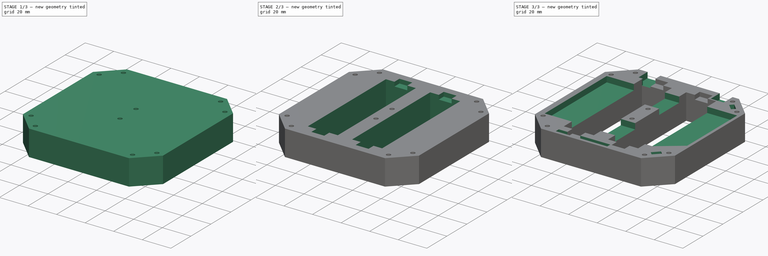
[diagram: build sequence overview — one tinted view per stage of 3, left to right]
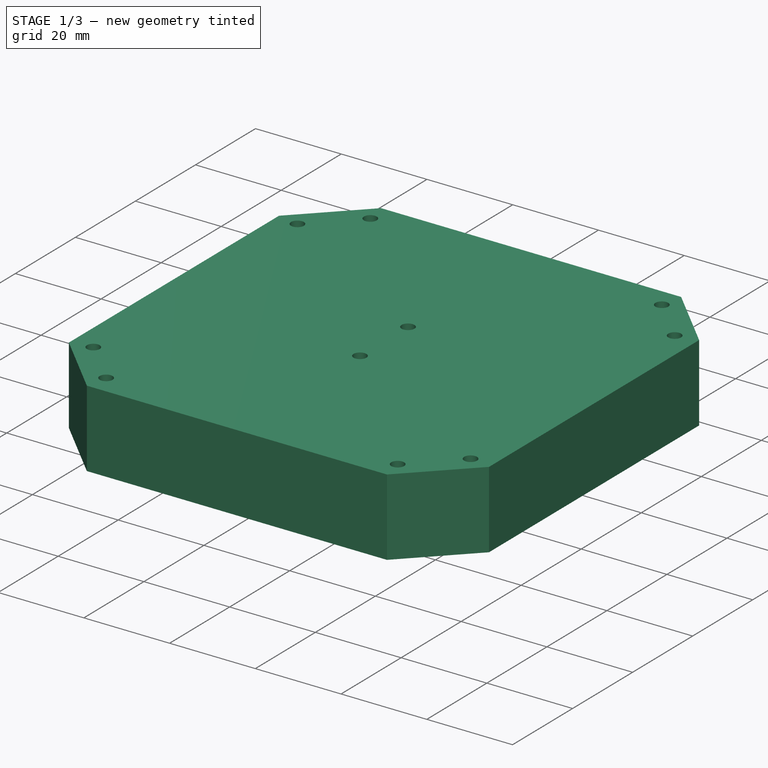
[diagram: stage 1 of 3 — iso view after this stage's code; geometry added in this stage tinted green]
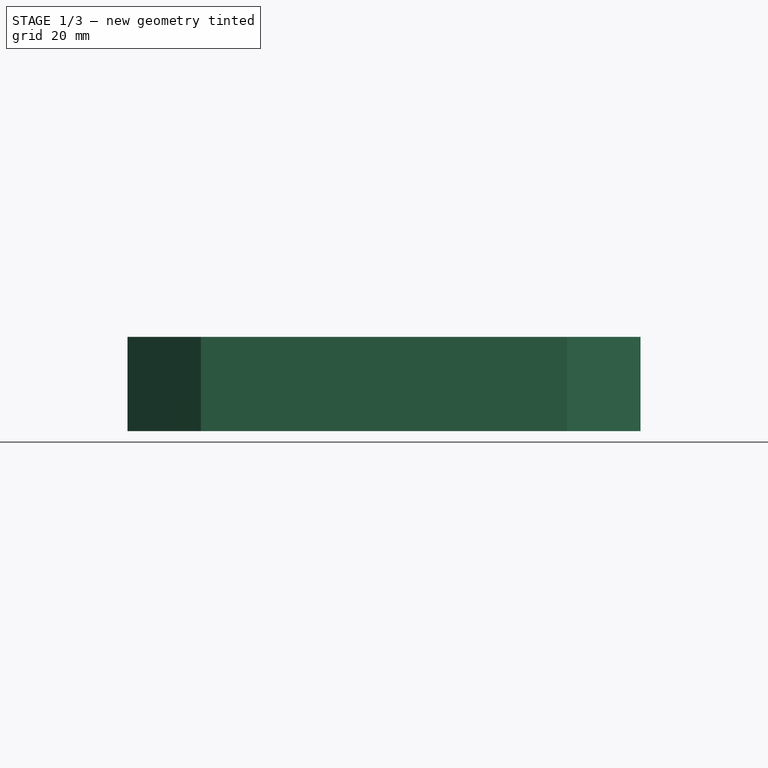
[diagram: stage 1 of 3 — front view after this stage's code; geometry added in this stage tinted green]
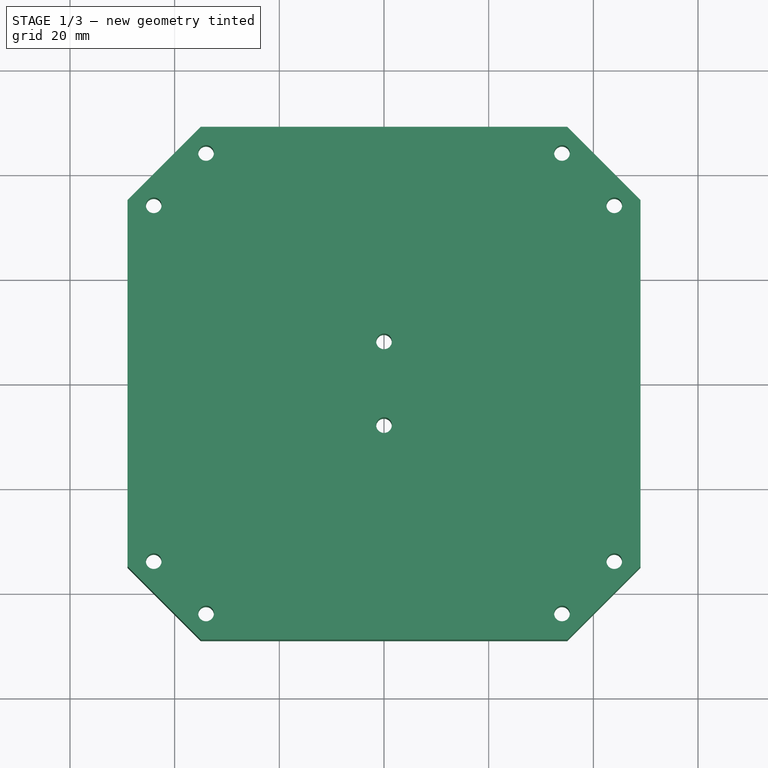
[diagram: stage 1 of 3 — top view after this stage's code; geometry added in this stage tinted green]
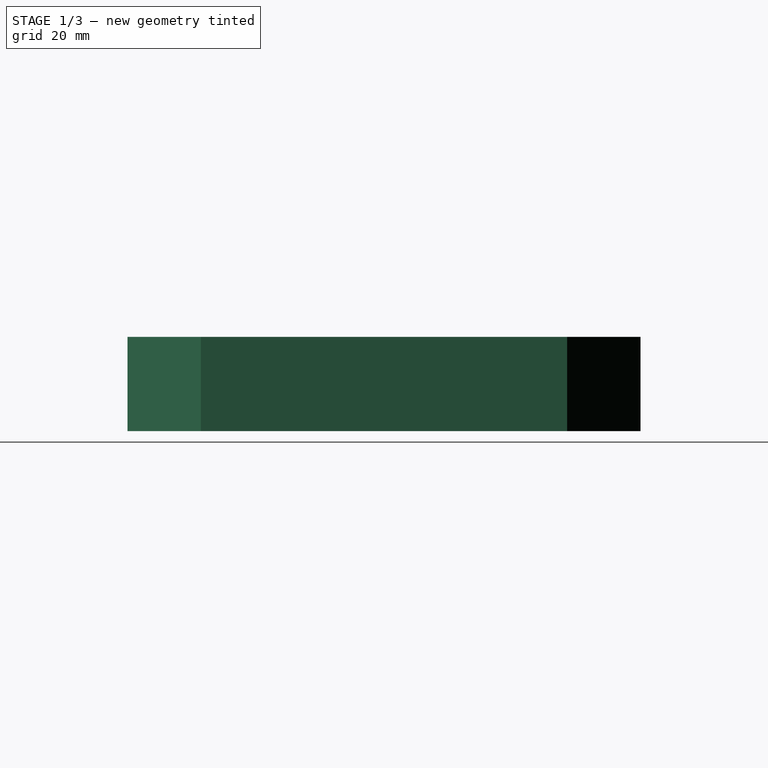
[diagram: stage 1 of 3 — right view after this stage's code; geometry added in this stage tinted green]
FCSTD DOCUMENT  (FreeCAD 0.19R24291 (Git))
Label: support
License: All rights reserved
LicenseURL: http://en.wikipedia.org/wiki/All_rights_reserved
objects: Sketcher::SketchObject×6, PartDesign::Pocket×5, PartDesign::Pad×1, PartDesign::Plane×1, PartDesign::Body×1, App::Part×1
note: 20 computed .brp shape members not serialized (recipe doc carries the construction recipe); baked Part::Feature solids carry a one-line shape summary decoded from their .brp

FEATURE [Sketcher::SketchObject] Sketch  label="outline"
  FullyConstrained = true
  MapMode = 5
  Support = -> [XY_Plane001]
  sketch-geometry (8):
    g0: LineSegment StartX=-49 StartY=35 StartZ=0 EndX=-35 EndY=49 EndZ=0
    g1: LineSegment StartX=-35 StartY=49 StartZ=0 EndX=35 EndY=49 EndZ=0
    g2: LineSegment StartX=35 StartY=49 StartZ=0 EndX=49 EndY=35 EndZ=0
    g3: LineSegment StartX=49 StartY=35 StartZ=0 EndX=49 EndY=-35 EndZ=0
    g4: LineSegment StartX=49 StartY=-35 StartZ=0 EndX=35 EndY=-49 EndZ=0
    g5: LineSegment StartX=35 StartY=-49 StartZ=0 EndX=-35 EndY=-49 EndZ=0
    g6: LineSegment StartX=-35 StartY=-49 StartZ=0 EndX=-49 EndY=-35 EndZ=0
    g7: LineSegment StartX=-49 StartY=-35 StartZ=0 EndX=-49 EndY=35 EndZ=0
  constraints (24):
    c: Coincident(g1,g0)
    c: Horizontal(g1)
    c: Coincident(g2,g1)
    c: Coincident(g3,g2)
    c: Vertical(g3)
    c: Coincident(g4,g3)
    c: Coincident(g5,g4)
    c: Horizontal(g5)
    c: Coincident(g6,g5)
    c: Coincident(g7,g6)
    c: Coincident(g7,g0)
    c: Vertical(g7)
    c: Vertical(g0,g5)
    c: Vertical(g1,g4)
    c: Horizontal(g0,g2)
    c: Horizontal(g6,g3)
    c: DistanceX(g1,g1) = 70
    c: Equal(g1,g7)
    c: DistanceX(g0,g2) = 98
    c: Angle(g0) = 0.785398
    c: Angle(g2) = -0.785398
    c: Angle(g6) = 2.35619
    c: DistanceY(g-1,g1) = 49
    c: DistanceX(g0,g-1) = 49
FEATURE [PartDesign::Pad] Pad
  Direction = (1,1,1)
  Length = 18
  Length2 = 100
  Profile = -> Sketch
  Type = 0
FEATURE [PartDesign::Plane] DatumPlane
  AttachmentOffset = pos=(0,0,18) rot=(0,0,1;0rad)
  Length = 117.6
  MapMode = 2
  Placement = pos=(0,0,18) rot=(0,0,1;0rad)
  ResizeMode = 0
  Support = -> [XY_Plane001]
  Width = 117.6
  expr: .AttachmentOffset.Base.z = Pad.Length
FEATURE [Sketcher::SketchObject] Sketch001
  FullyConstrained = true
  MapMode = 5
  Placement = pos=(0,0,18) rot=(0,0,1;0rad)
  Support = -> [DatumPlane]
  sketch-geometry (10):
    g0: Circle CenterX=-34 CenterY=44 CenterZ=0 NormalX=0 NormalY=0 NormalZ=1 AngleXU=0 Radius=1.5
    g1: Circle CenterX=34 CenterY=44 CenterZ=0 NormalX=0 NormalY=0 NormalZ=1 AngleXU=0 Radius=1.5
    g2: Circle CenterX=44 CenterY=34 CenterZ=0 NormalX=0 NormalY=0 NormalZ=1 AngleXU=0 Radius=1.5
    g3: Circle CenterX=-44 CenterY=34 CenterZ=0 NormalX=0 NormalY=0 NormalZ=1 AngleXU=0 Radius=1.5
    g4: Circle CenterX=-44 CenterY=-34 CenterZ=0 NormalX=0 NormalY=0 NormalZ=1 AngleXU=0 Radius=1.5
    g5: Circle CenterX=-34 CenterY=-44 CenterZ=0 NormalX=0 NormalY=0 NormalZ=1 AngleXU=0 Radius=1.5
    g6: Circle CenterX=34 CenterY=-44 CenterZ=0 NormalX=0 NormalY=0 NormalZ=1 AngleXU=0 Radius=1.5
    g7: Circle CenterX=44 CenterY=-34 CenterZ=0 NormalX=0 NormalY=0 NormalZ=1 AngleXU=0 Radius=1.5
    g8: Circle CenterX=0 CenterY=8 CenterZ=0 NormalX=0 NormalY=0 NormalZ=1 AngleXU=0 Radius=1.5
    g9: Circle CenterX=0 CenterY=-8 CenterZ=0 NormalX=0 NormalY=0 NormalZ=1 AngleXU=0 Radius=1.5
  constraints (30):
    c: Equal(g7,g6)
    c: Equal(g6,g5)
    c: Equal(g5,g4)
    c: Equal(g4,g3)
    c: Equal(g3,g0)
    c: Equal(g0,g1)
    c: Equal(g1,g2)
    c: Radius(g0) = 1.5
    c: Horizontal(g0,g1)
    c: Horizontal(g5,g6)
    c: Vertical(g4,g3)
    c: Vertical(g7,g2)
    c: DistanceX(g0,g-1) = 34
    c: DistanceY(g-1,g0) = 44
    c: Vertical(g5,g0)
    c: Vertical(g6,g1)
    c: Horizontal(g7,g4)
    c: Horizontal(g3,g2)
    c: DistanceX(g-1,g1) = 34
    c: DistanceY(g5,g-1) = 44
    c: DistanceY(g7,g-1) = 34
    c: DistanceX(g-1,g7) = 44
    c: DistanceY(g-1,g2) = 34
    c: DistanceX(g4,g-1) = 44
    c: PointOnObject(g8,g-2)
    c: PointOnObject(g9,g-2)
    c: Equal(g8,g9)
    c: Equal(g9,g2)
    c: DistanceY(g-1,g8) = 8
    c: DistanceY(g9,g-1) = 8
FEATURE [PartDesign::Pocket] Pocket  label="Mounting_holes"
  BaseFeature = -> Pad
  Length = 5
  Length2 = 100
  Profile = -> Sketch001
  Type = 1
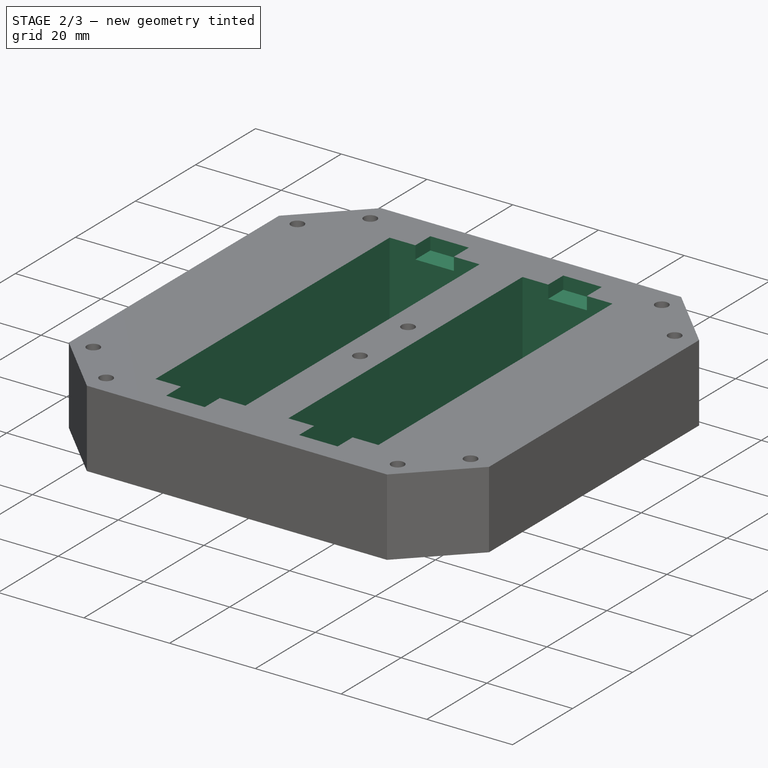
[diagram: stage 2 of 3 — iso view after this stage's code; geometry added in this stage tinted green]
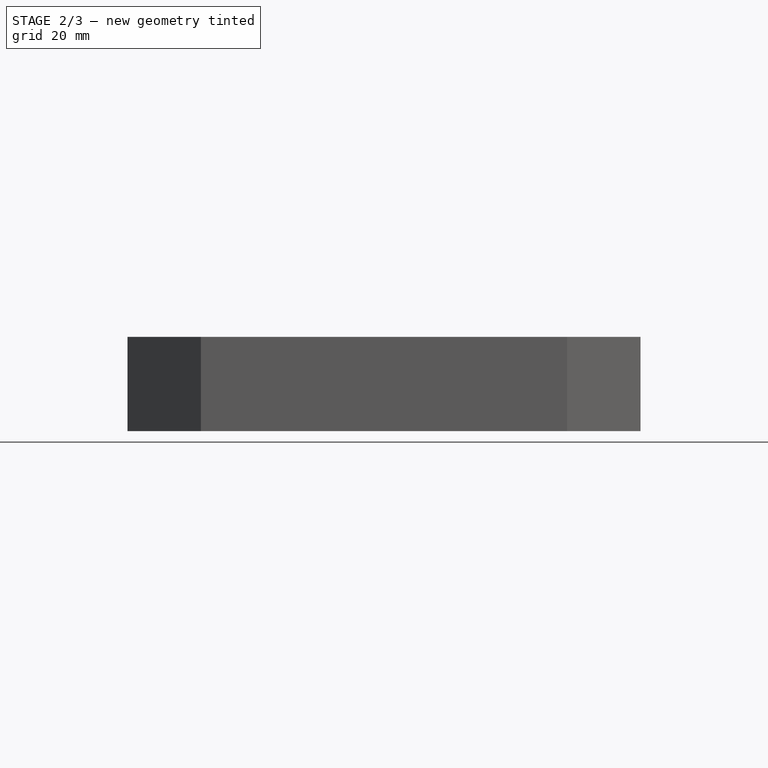
[diagram: stage 2 of 3 — front view after this stage's code; geometry added in this stage tinted green]
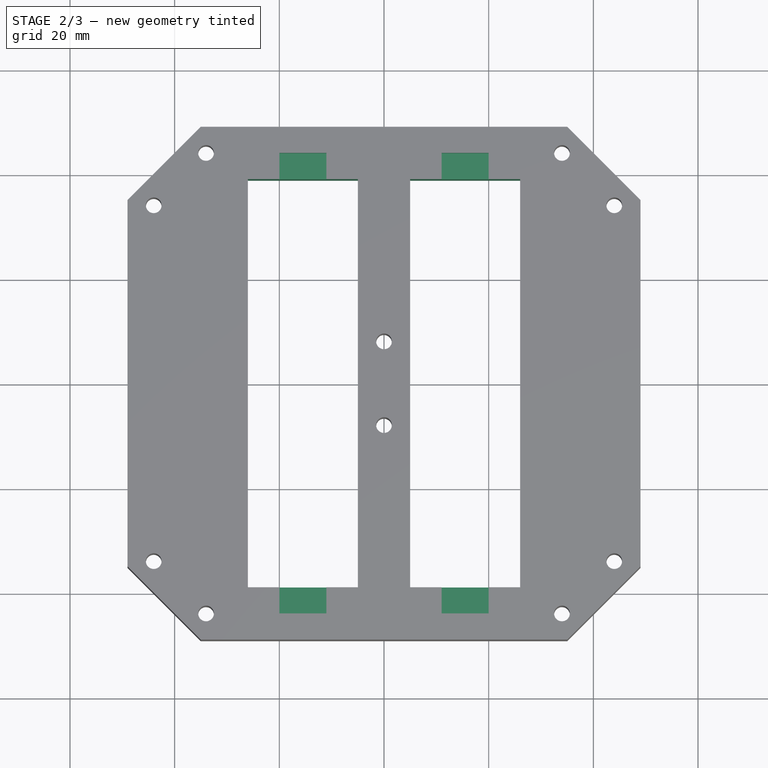
[diagram: stage 2 of 3 — top view after this stage's code; geometry added in this stage tinted green]
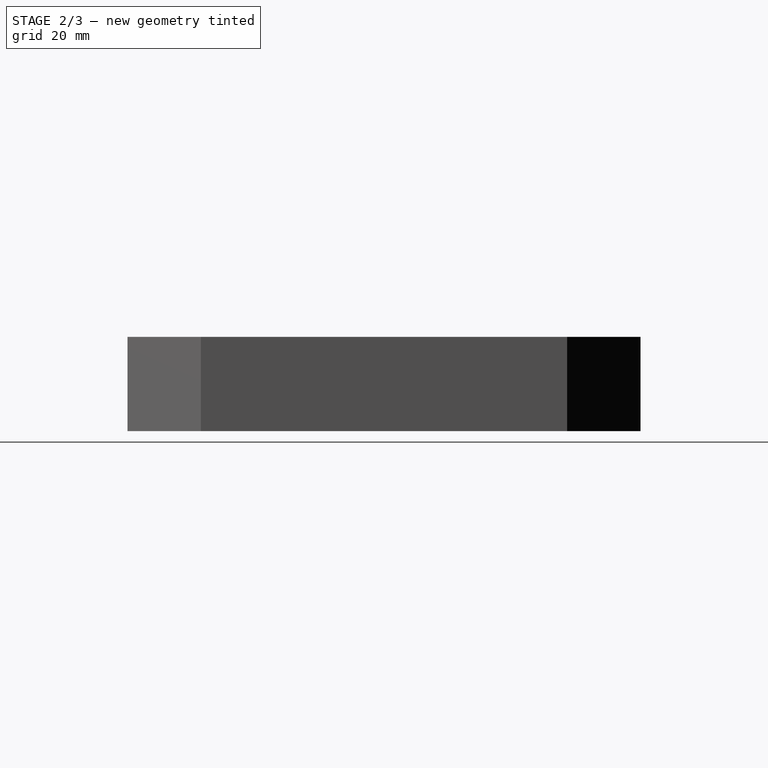
[diagram: stage 2 of 3 — right view after this stage's code; geometry added in this stage tinted green]
FEATURE [Sketcher::SketchObject] Sketch002
  FullyConstrained = true
  MapMode = 5
  Placement = pos=(0,0,18) rot=(0,0,1;0rad)
  Support = -> [DatumPlane]
  sketch-geometry (8):
    g0: LineSegment StartX=-26 StartY=39 StartZ=0 EndX=-5 EndY=39 EndZ=0
    g1: LineSegment StartX=-5 StartY=39 StartZ=0 EndX=-5 EndY=-39 EndZ=0
    g2: LineSegment StartX=-5 StartY=-39 StartZ=0 EndX=-26 EndY=-39 EndZ=0
    g3: LineSegment StartX=-26 StartY=-39 StartZ=0 EndX=-26 EndY=39 EndZ=0
    g4: LineSegment StartX=5 StartY=39 StartZ=0 EndX=26 EndY=39 EndZ=0
    g5: LineSegment StartX=26 StartY=39 StartZ=0 EndX=26 EndY=-39 EndZ=0
    g6: LineSegment StartX=26 StartY=-39 StartZ=0 EndX=5 EndY=-39 EndZ=0
    g7: LineSegment StartX=5 StartY=-39 StartZ=0 EndX=5 EndY=39 EndZ=0
  constraints (24):
    c: Coincident(g0,g1)
    c: Coincident(g1,g2)
    c: Coincident(g2,g3)
    c: Coincident(g3,g0)
    c: Horizontal(g0)
    c: Horizontal(g2)
    c: Vertical(g1)
    c: Vertical(g3)
    c: Coincident(g4,g5)
    c: Coincident(g5,g6)
    c: Coincident(g6,g7)
    c: Coincident(g7,g4)
    c: Horizontal(g4)
    c: Horizontal(g6)
    c: Vertical(g5)
    c: Vertical(g7)
    c: Horizontal(g0,g4)
    c: Horizontal(g1,g6)
    c: Equal(g2,g6)
    c: DistanceY(g1,g-1) = 39
    c: DistanceX(g1,g-1) = 5
    c: DistanceX(g-1,g6) = 5
    c: DistanceX(g0,g0) = 21
    c: DistanceY(g-1,g0) = 39
FEATURE [PartDesign::Pocket] Pocket001  label="Batt_holes"
  BaseFeature = -> Pocket
  Length = 5
  Length2 = 100
  Profile = -> Sketch002
  Type = 1
FEATURE [Sketcher::SketchObject] Sketch003
  FullyConstrained = true
  MapMode = 5
  Placement = pos=(0,0,18) rot=(0,0,1;0rad)
  Support = -> [DatumPlane]
  sketch-geometry (8):
    g0: LineSegment StartX=-20 StartY=44 StartZ=0 EndX=-11 EndY=44 EndZ=0
    g1: LineSegment StartX=-11 StartY=44 StartZ=0 EndX=-11 EndY=-44 EndZ=0
    g2: LineSegment StartX=-11 StartY=-44 StartZ=0 EndX=-20 EndY=-44 EndZ=0
    g3: LineSegment StartX=-20 StartY=-44 StartZ=0 EndX=-20 EndY=44 EndZ=0
    g4: LineSegment StartX=11 StartY=44 StartZ=0 EndX=20 EndY=44 EndZ=0
    g5: LineSegment StartX=20 StartY=44 StartZ=0 EndX=20 EndY=-44 EndZ=0
    g6: LineSegment StartX=20 StartY=-44 StartZ=0 EndX=11 EndY=-44 EndZ=0
    g7: LineSegment StartX=11 StartY=-44 StartZ=0 EndX=11 EndY=44 EndZ=0
  constraints (24):
    c: Coincident(g0,g1)
    c: Coincident(g1,g2)
    c: Coincident(g2,g3)
    c: Coincident(g3,g0)
    c: Horizontal(g0)
    c: Horizontal(g2)
    c: Vertical(g1)
    c: Vertical(g3)
    c: Coincident(g4,g5)
    c: Coincident(g5,g6)
    c: Coincident(g6,g7)
    c: Coincident(g7,g4)
    c: Horizontal(g4)
    c: Horizontal(g6)
    c: Vertical(g5)
    c: Vertical(g7)
    c: Horizontal(g1,g6)
    c: Horizontal(g0,g4)
    c: DistanceX(g0,g0) = 9
    c: Equal(g0,g4)
    c: DistanceY(g-1,g0) = 44
    c: DistanceY(g2,g-1) = 44
    c: DistanceX(g0,g-1) = 11
    c: DistanceX(g-1,g4) = 11
FEATURE [PartDesign::Pocket] Pocket002  label="Batt_tabs"
  BaseFeature = -> Pocket001
  Length = 3
  Length2 = 100
  Profile = -> Sketch003
  Type = 0
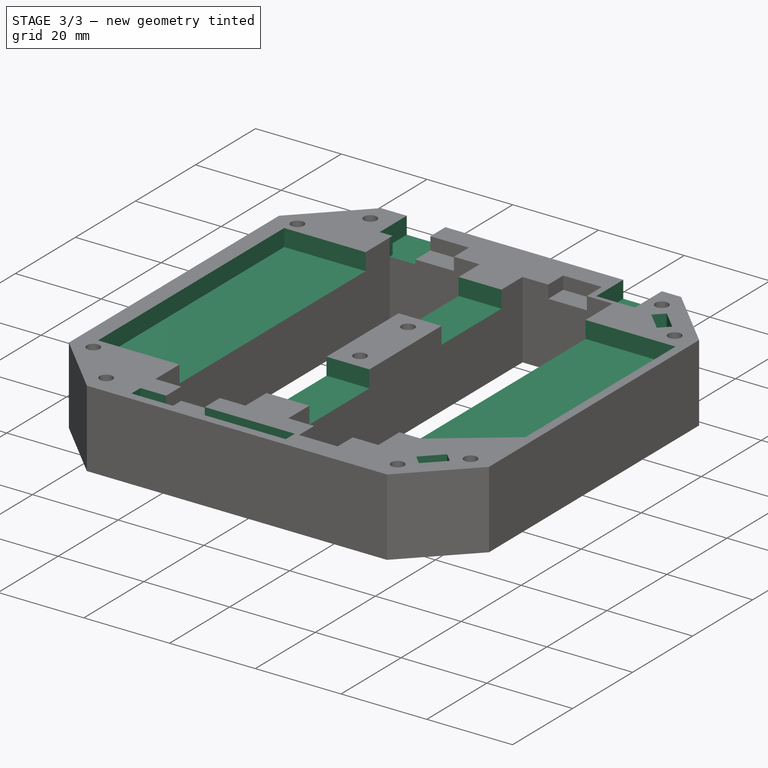
[diagram: stage 3 of 3 — iso view after this stage's code; geometry added in this stage tinted green]
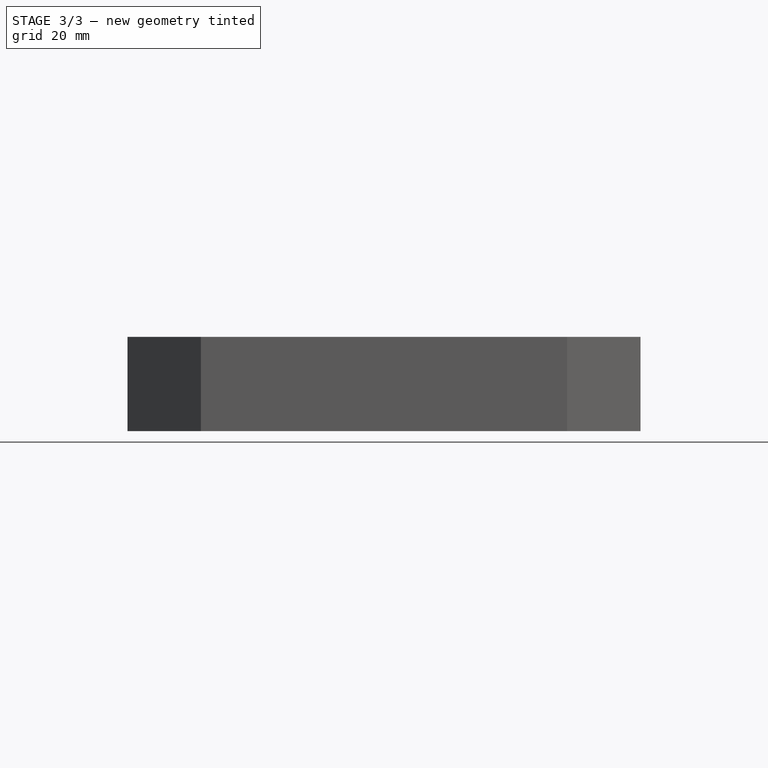
[diagram: stage 3 of 3 — front view after this stage's code; geometry added in this stage tinted green]
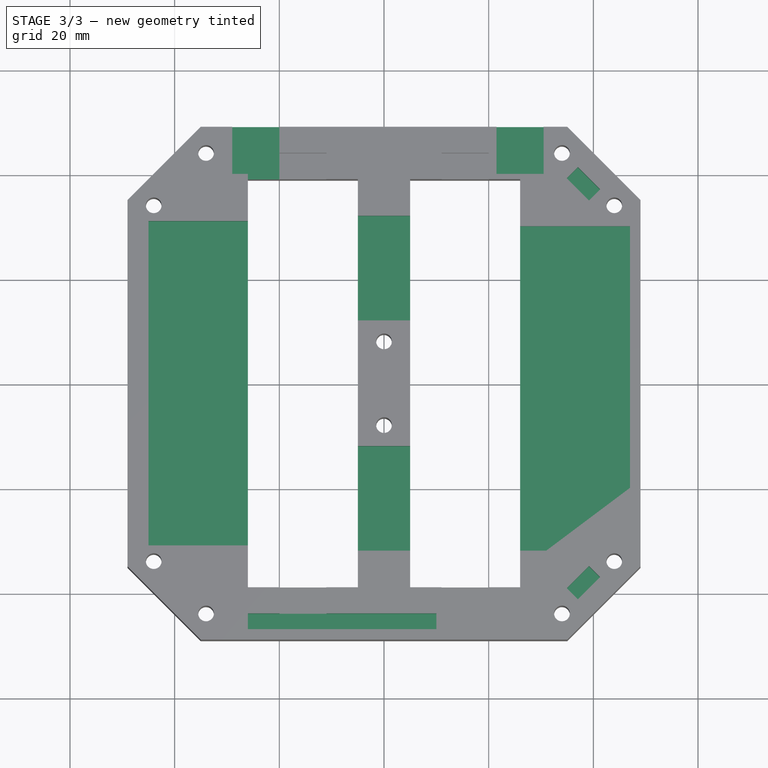
[diagram: stage 3 of 3 — top view after this stage's code; geometry added in this stage tinted green]
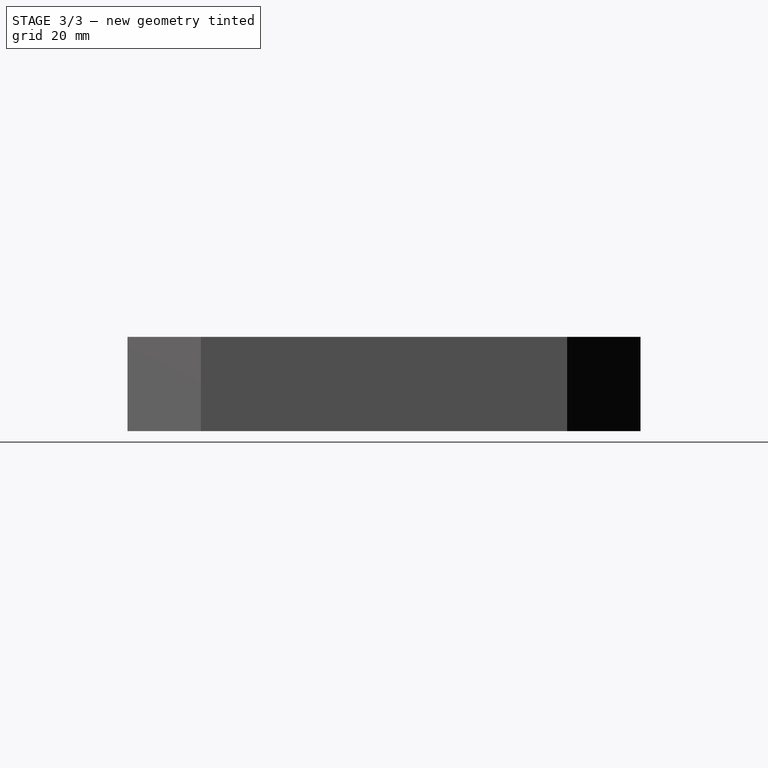
[diagram: stage 3 of 3 — right view after this stage's code; geometry added in this stage tinted green]
FEATURE [Sketcher::SketchObject] Sketch004
  ExternalGeometry = -> [Pocket002]
  FullyConstrained = true
  MapMode = 5
  Placement = pos=(0,0,18) rot=(0,0,1;0rad)
  Support = -> [DatumPlane]
  sketch-geometry (41):
    g0: LineSegment StartX=-6 StartY=32 StartZ=0 EndX=6 EndY=32 EndZ=0
    g1: LineSegment StartX=6 StartY=32 StartZ=0 EndX=6 EndY=12 EndZ=0
    g2: LineSegment StartX=6 StartY=12 StartZ=0 EndX=-6 EndY=12 EndZ=0
    g3: LineSegment StartX=-6 StartY=12 StartZ=0 EndX=-6 EndY=32 EndZ=0
    g4: LineSegment StartX=-6 StartY=-12 StartZ=0 EndX=6 EndY=-12 EndZ=0
    g5: LineSegment StartX=6 StartY=-12 StartZ=0 EndX=6 EndY=-32 EndZ=0
    g6: LineSegment StartX=6 StartY=-32 StartZ=0 EndX=-6 EndY=-32 EndZ=0
    g7: LineSegment StartX=-6 StartY=-32 StartZ=0 EndX=-6 EndY=-12 EndZ=0
    g8: LineSegment StartX=-45 StartY=31 StartZ=0 EndX=-26 EndY=31 EndZ=0
    g9: LineSegment StartX=-26 StartY=31 StartZ=0 EndX=-26 EndY=-31 EndZ=0
    g10: LineSegment StartX=-26 StartY=-31 StartZ=0 EndX=-45 EndY=-31 EndZ=0
    g11: LineSegment StartX=-45 StartY=-31 StartZ=0 EndX=-45 EndY=31 EndZ=0
    g12: LineSegment StartX=-29 StartY=49 StartZ=0 EndX=-20 EndY=49 EndZ=0
    g13: LineSegment StartX=-20 StartY=49 StartZ=0 EndX=-20 EndY=40 EndZ=0
    g14: LineSegment StartX=-20 StartY=40 StartZ=0 EndX=-29 EndY=40 EndZ=0
    g15: LineSegment StartX=-29 StartY=40 StartZ=0 EndX=-29 EndY=49 EndZ=0
    g16: LineSegment StartX=21.5 StartY=49 StartZ=0 EndX=30.5 EndY=49 EndZ=0
    g17: LineSegment StartX=30.5 StartY=49 StartZ=0 EndX=30.5 EndY=40 EndZ=0
    g18: LineSegment StartX=30.5 StartY=40 StartZ=0 EndX=21.5 EndY=40 EndZ=0
    g19: LineSegment StartX=21.5 StartY=40 StartZ=0 EndX=21.5 EndY=49 EndZ=0
    g20: LineSegment StartX=37.0503 StartY=41.2929 StartZ=0 EndX=41.2929 EndY=37.0503 EndZ=0
    g21: LineSegment StartX=41.2929 StartY=37.0503 StartZ=0 EndX=39.1716 EndY=34.9289 EndZ=0
    g22: LineSegment StartX=39.1716 StartY=34.9289 StartZ=0 EndX=34.9289 EndY=39.1716 EndZ=0
    g23: LineSegment StartX=34.9289 StartY=39.1716 StartZ=0 EndX=37.0503 EndY=41.2929 EndZ=0
    g24: LineSegment StartX=34.9289 StartY=-39.1716 StartZ=0 EndX=37.0503 EndY=-41.2929 EndZ=0
    g25: LineSegment StartX=37.0503 StartY=-41.2929 StartZ=0 EndX=41.2929 EndY=-37.0503 EndZ=0
    g26: LineSegment StartX=41.2929 StartY=-37.0503 StartZ=0 EndX=39.1716 EndY=-34.9289 EndZ=0
    g27: LineSegment StartX=39.1716 StartY=-34.9289 StartZ=0 EndX=34.9289 EndY=-39.1716 EndZ=0
    g28: LineSegment StartX=-26 StartY=-44 StartZ=0 EndX=10 EndY=-44 EndZ=0
    g29: LineSegment StartX=10 StartY=-44 StartZ=0 EndX=10 EndY=-47 EndZ=0
    g30: LineSegment StartX=10 StartY=-47 StartZ=0 EndX=-26 EndY=-47 EndZ=0
    g31: LineSegment StartX=-26 StartY=-47 StartZ=0 EndX=-26 EndY=-44 EndZ=0
    g32: LineSegment StartX=47 StartY=30 StartZ=0 EndX=26 EndY=30 EndZ=0
    g33: LineSegment StartX=26 StartY=30 StartZ=0 EndX=26 EndY=-32 EndZ=0
    g34: LineSegment StartX=26 StartY=-32 StartZ=0 EndX=31 EndY=-32 EndZ=0
    g35: LineSegment StartX=31 StartY=-32 StartZ=0 EndX=47 EndY=-20 EndZ=0
    g36: LineSegment StartX=47 StartY=30 StartZ=0 EndX=47 EndY=-20 EndZ=0
    g37: LineSegment StartX=37.0503 StartY=41.2929 StartZ=0 EndX=35 EndY=49 EndZ=0
    g38: LineSegment StartX=41.2929 StartY=37.0503 StartZ=0 EndX=49 EndY=35 EndZ=0
    g39: LineSegment StartX=41.2929 StartY=-37.0503 StartZ=0 EndX=49 EndY=-35 EndZ=0
    g40: LineSegment StartX=37.0503 StartY=-41.2929 StartZ=0 EndX=35 EndY=-49 EndZ=0
  constraints (119):
    c: Coincident(g0,g1)
    c: Coincident(g1,g2)
    c: Coincident(g2,g3)
    c: Coincident(g3,g0)
    c: Horizontal(g0)
    c: Horizontal(g2)
    c: Vertical(g1)
    c: Vertical(g3)
    c: Coincident(g4,g5)
    c: Coincident(g5,g6)
    c: Coincident(g6,g7)
    c: Coincident(g7,g4)
    c: Horizontal(g4)
    c: Horizontal(g6)
    c: Vertical(g5)
    c: Vertical(g7)
    c: Coincident(g8,g9)
    c: Coincident(g9,g10)
    c: Coincident(g10,g11)
    c: Coincident(g11,g8)
    c: Horizontal(g8)
    c: Horizontal(g10)
    c: Vertical(g9)
    c: Vertical(g11)
    c: Coincident(g12,g13)
    c: Coincident(g13,g14)
    c: Coincident(g14,g15)
    c: Coincident(g15,g12)
    c: Horizontal(g12)
    c: Horizontal(g14)
    c: Vertical(g13)
    c: Vertical(g15)
    c: Coincident(g16,g17)
    c: Coincident(g17,g18)
    c: Coincident(g18,g19)
    c: Coincident(g19,g16)
    c: Horizontal(g16)
    c: Horizontal(g18)
    c: Vertical(g17)
    c: Vertical(g19)
    c: Coincident(g21,g20)
    c: Coincident(g22,g21)
    c: Coincident(g23,g22)
    c: Coincident(g23,g20)
    c: Coincident(g25,g24)
    c: Coincident(g26,g25)
    c: Coincident(g27,g26)
    c: Coincident(g27,g24)
    c: Coincident(g28,g29)
    c: Coincident(g29,g30)
    c: Coincident(g30,g31)
    c: Coincident(g31,g28)
    c: Horizontal(g28)
    c: Horizontal(g30)
    c: Vertical(g29)
    c: Vertical(g31)
    c: Horizontal(g32)
    c: Coincident(g33,g32)
    c: Vertical(g33)
    c: Coincident(g34,g33)
    c: Coincident(g35,g34)
    c: Coincident(g36,g32)
    c: Coincident(g36,g35)
    c: Vertical(g36)
    c: Horizontal(g34)
    c: Perpendicular(g23,g20)
    c: Perpendicular(g22,g21)
    c: Perpendicular(g20,g21)
    c: Angle(g20) = -0.785398
    c: Distance(g20) = 6
    c: Distance(g21) = 3
    c: Perpendicular(g24,g25)
    c: Perpendicular(g27,g26)
    c: Perpendicular(g24,g27)
    c: Angle(g25) = 0.785398
    c: Distance(g24) = 3
    c: Distance(g25) = 6
    c: Coincident(g37,g20)
    c: Coincident(g37,g-3)
    c: Coincident(g38,g20)
    c: Coincident(g38,g-3)
    c: Equal(g38,g37)
    c: Distance(g20,g-3) = 4
    c: Coincident(g39,g25)
    c: Coincident(g39,g-4)
    c: Coincident(g40,g24)
    c: Coincident(g40,g-4)
    c: Equal(g39,g40)
    c: Distance(g25,g-4) = 4
    c: DistanceX(g10,g10) = 19
    c: DistanceX(g9,g-1) = 26
    c: DistanceY(g11,g11) = 62
    c: DistanceY(g9,g-1) = 31
    c: DistanceY(g29,g29) = 3
    c: Distance(g30,g-5) = 2
    c: DistanceX(g30,g30) = 36
    c: DistanceX(g-5,g30) = 9
    c: Equal(g12,g13)
    c: Equal(g19,g16)
    c: Equal(g19,g13)
    c: DistanceX(g14,g14) = 9
    c: DistanceX(g-6,g12) = 6
    c: PointOnObject(g12,g-6)
    c: DistanceX(g16,g37) = 4.5
    c: PointOnObject(g16,g-6)
    c: DistanceY(g-1,g0) = 32
    c: DistanceY(g-1,g2) = 12
    c: DistanceY(g4,g-1) = 12
    c: DistanceY(g6,g-1) = 32
    c: Equal(g2,g4)
    c: DistanceX(g6,g6) = 12
    c: Vertical(g4,g2)
    c: DistanceX(g6,g-1) = 6
    c: DistanceX(g-1,g32) = 26
    c: DistanceX(g-1,g32) = 47
    c: DistanceY(g-1,g32) = 30
    c: DistanceY(g33,g-1) = 32
    c: DistanceY(g35,g-1) = 20
    c: DistanceX(g34,g34) = 5
FEATURE [PartDesign::Pocket] Pocket003  label="THT_cutouts"
  BaseFeature = -> Pocket002
  Length = 4
  Length2 = 100
  Profile = -> Sketch004
  Type = 0
FEATURE [Sketcher::SketchObject] Sketch005
  ExternalGeometry = -> [Pocket003]
  FullyConstrained = true
  MapMode = 5
  Placement = pos=(0,0,18) rot=(0,0,1;0rad)
  Support = -> [DatumPlane]
  sketch-geometry (4):
    g0: LineSegment StartX=-20 StartY=40 StartZ=0 EndX=-26 EndY=40 EndZ=0
    g1: LineSegment StartX=-26 StartY=40 StartZ=0 EndX=-26 EndY=39 EndZ=0
    g2: LineSegment StartX=-26 StartY=39 StartZ=0 EndX=-20 EndY=39 EndZ=0
    g3: LineSegment StartX=-20 StartY=39 StartZ=0 EndX=-20 EndY=40 EndZ=0
  constraints (10):
    c: Coincident(g0,g1)
    c: Coincident(g1,g2)
    c: Coincident(g2,g3)
    c: Coincident(g3,g0)
    c: Horizontal(g0)
    c: Horizontal(g2)
    c: Vertical(g1)
    c: Vertical(g3)
    c: Coincident(g0,g-5)
    c: Coincident(g1,g-4)
FEATURE [PartDesign::Pocket] Pocket004  label="cleanup"
  BaseFeature = -> Pocket003
  Length = 4
  Length2 = 100
  Profile = -> Sketch005
  Type = 0
FEATURE [PartDesign::Body] Body
  Group = -> [Sketch,Pad,DatumPlane,Sketch001,Pocket,Sketch002,Pocket001,Sketch003,Pocket002,Sketch004,Pocket003,Sketch005,Pocket004]
  Origin = -> Origin001
  Tip = -> Pocket004
FEATURE [App::Part] Part
  Group = -> [Body]
  Origin = -> Origin
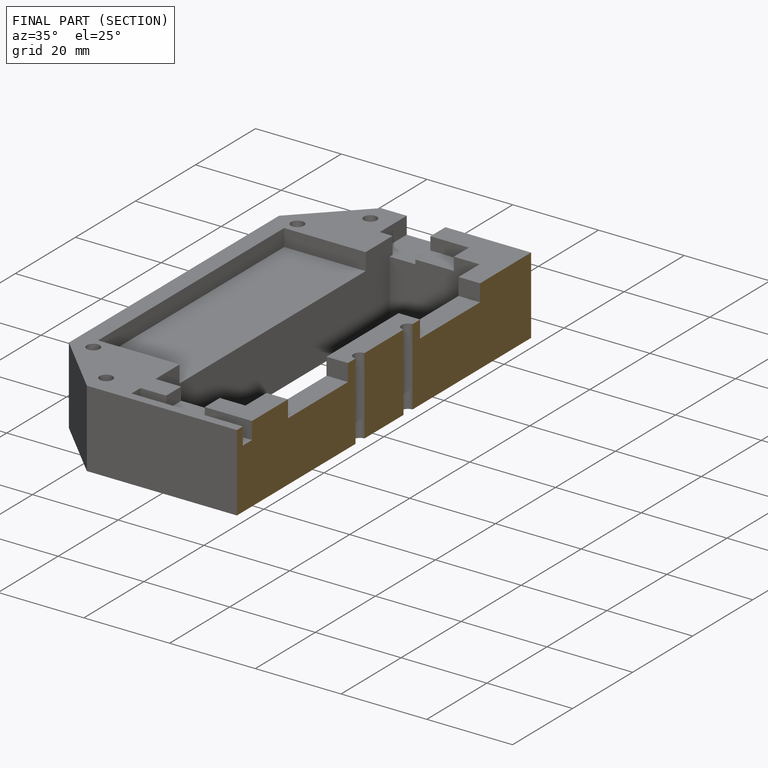
[diagram: finished part — half-section view (interior)]
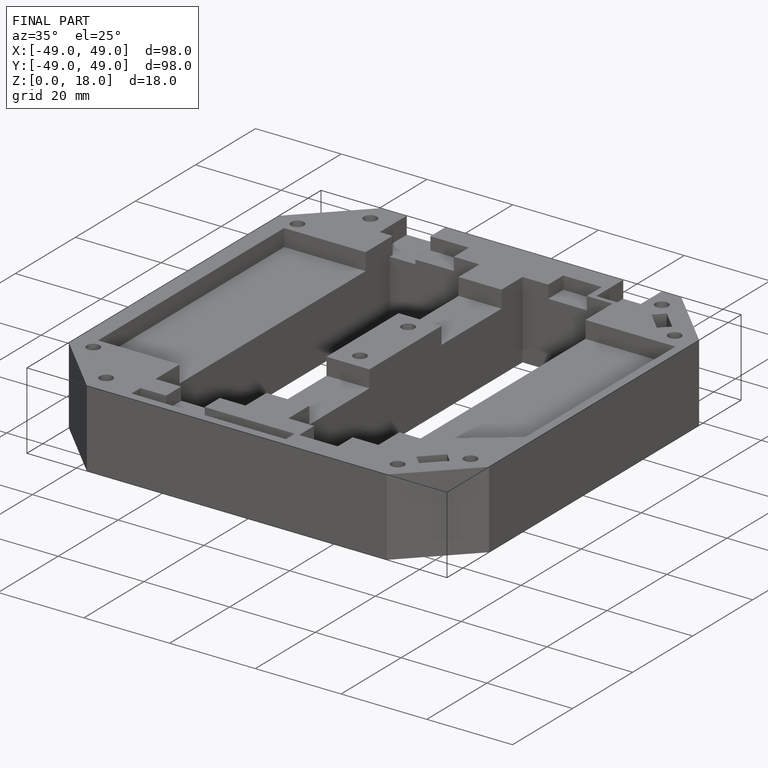
[diagram: finished part — iso view with bounding-box wireframe]
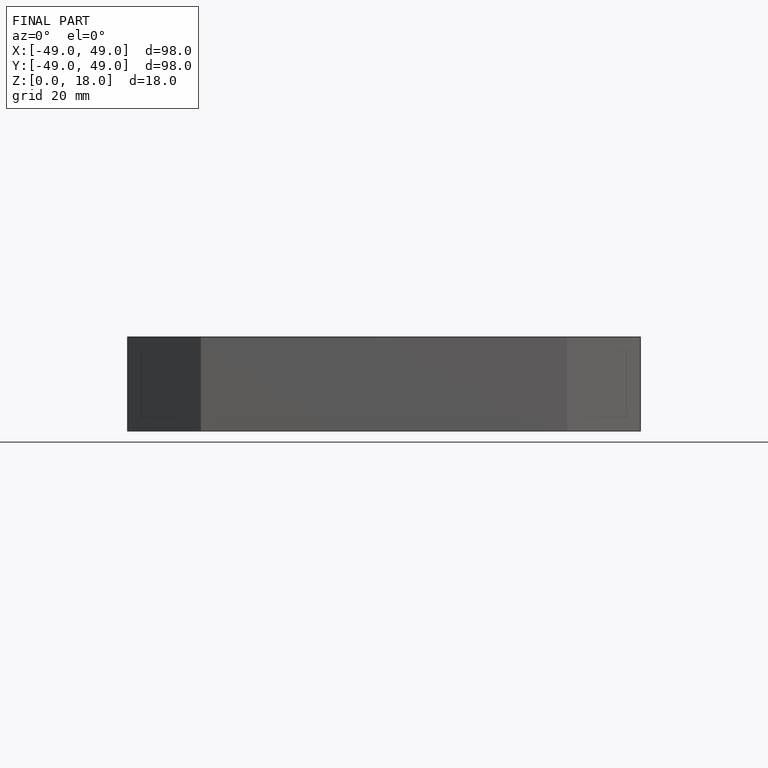
[diagram: finished part — front view with bounding-box wireframe]
